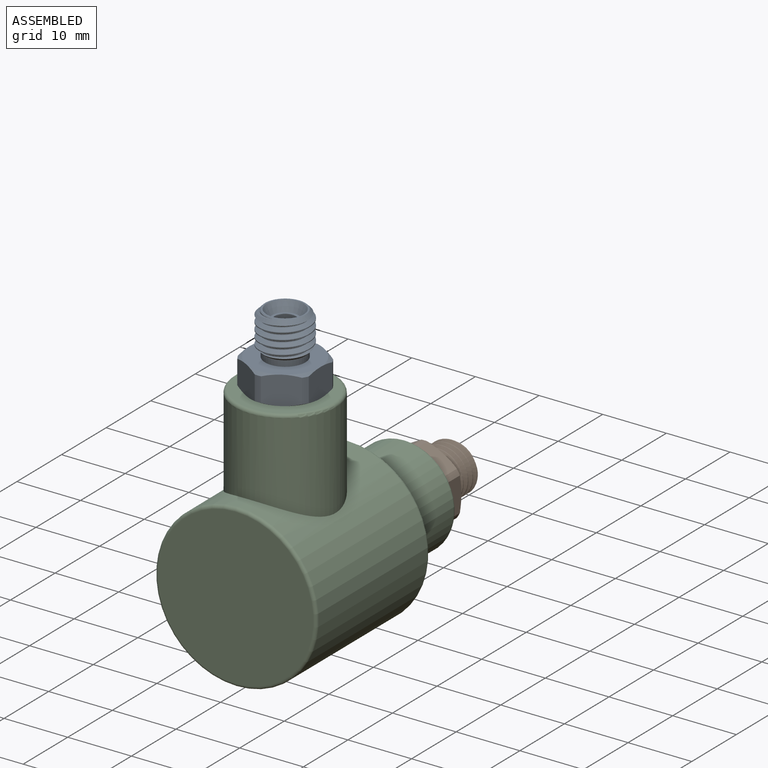
[diagram: assembled view]
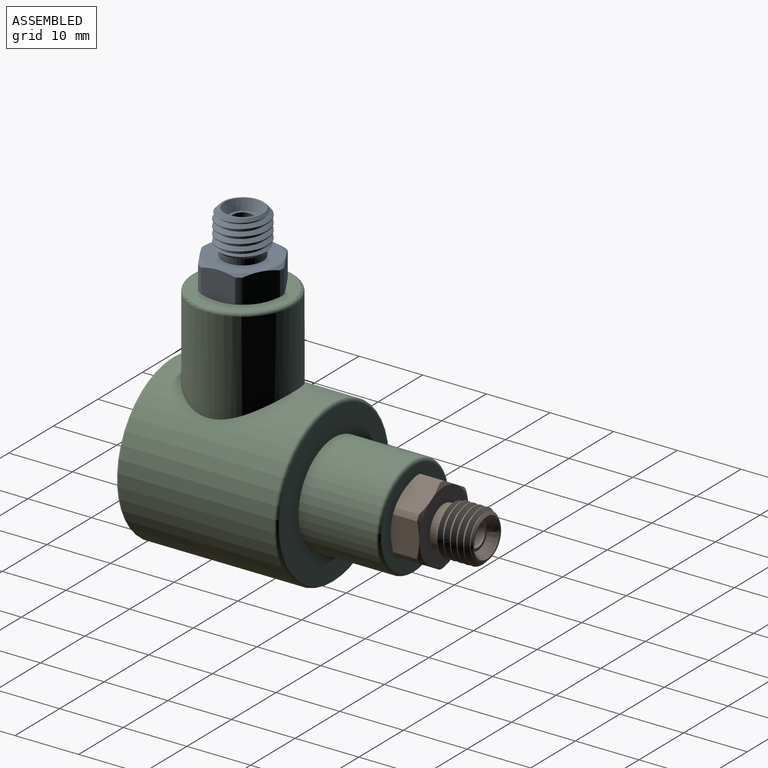
[diagram: assembled view, second angle]
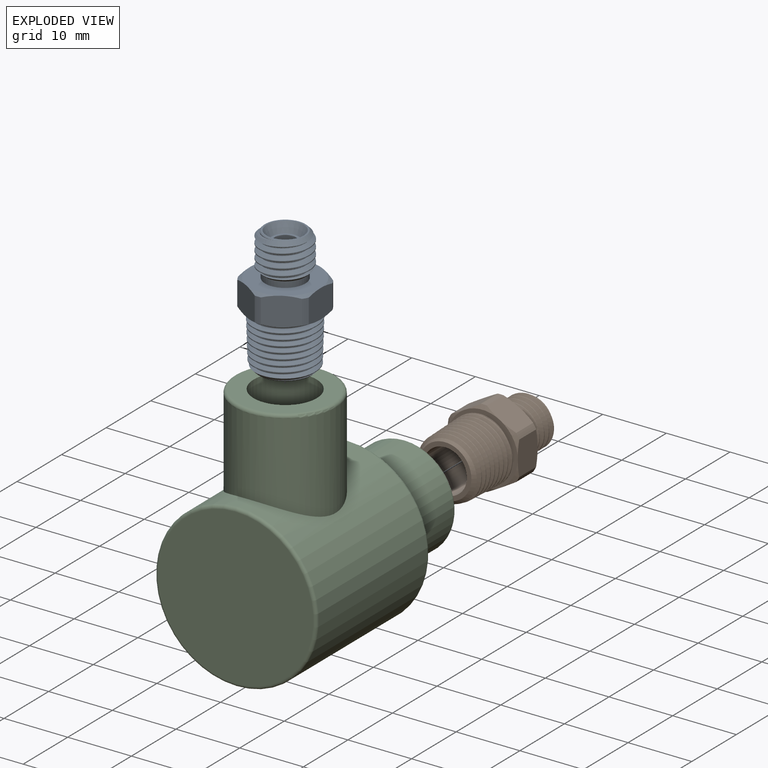
[diagram: exploded view]
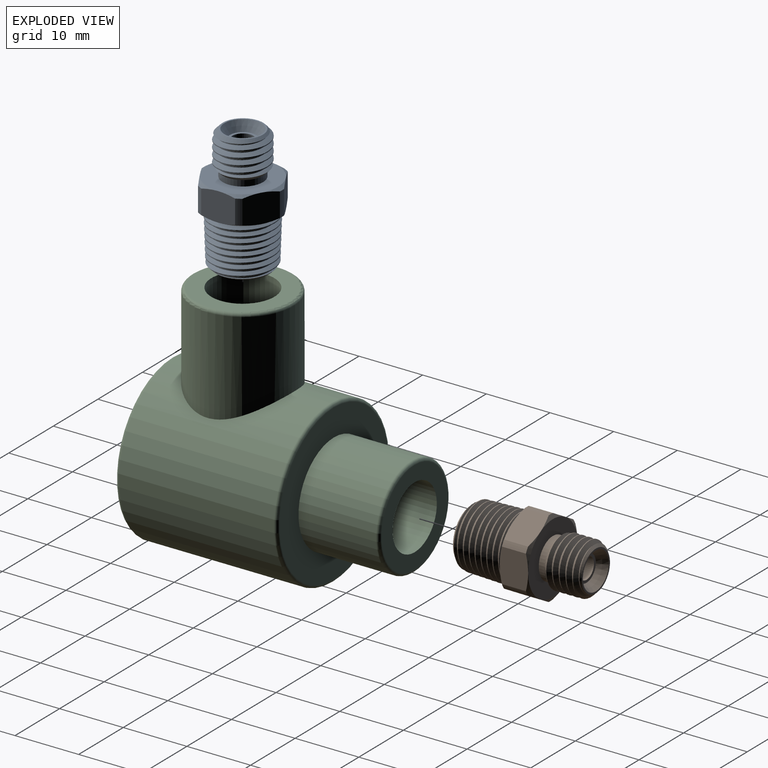
[diagram: exploded view, second angle]
ASSEMBLY  parts=3 mates=2
PART A: 48 faces, bbox 21.3x21.3x29.2 mm
  f0: cone r=4.12mm half-angle=45deg, axis (0,0,1), area 16.9mm2, adj f3,f44,f45,f46,f47
  f1: cone r=3.42mm half-angle=59deg, axis (0,0,-1), area 37.6mm2, adj f2,f10
  f2: cylinder r=3.42mm len=7mm, axis (0,0,1), area 150.2mm2, adj f1,f44
  f3: cone r=5.09mm half-angle=1.8deg, axis (0,0,1), area 33.4mm2, adj f0,f43,f46,f47
  f4: cone r=6.16mm half-angle=60deg, axis (0,0,1), area 2.4mm2, adj f5,f30,f31,f43
  f5: cylinder r=6.16mm len=3.78mm, axis (0,0,1), area 3.6mm2, adj f4,f24,f30,f31
  f6: cone r=5.56mm half-angle=60deg, axis (0,0,-1), area 2.4mm2, adj f21,f27,f28,f33
  f7: cylinder r=3.17mm len=6.33mm, axis (0,0,1), area 18.2mm2, adj f8,f21
  f8: cone r=4.08mm half-angle=45deg, axis (0,0,1), area 14.1mm2, adj f7,f9,f18,f19,f20
  f9: cylinder r=3.97mm len=7.94mm, axis (0,0,1), area 8.1mm2, adj f8,f14,f18,f20
  f10: cylinder r=1.19mm len=5.13mm, axis (0,0,1), area 38.5mm2, adj f1,f17
  f11: cylinder r=1.65mm len=4.64mm, axis (0,0,1), area 48.2mm2, adj f16,f17
  f12: cone r=2.07mm half-angle=30deg, axis (0,0,1), area 26.3mm2, adj f15,f16
  f13: cone r=3.17mm half-angle=45deg, axis (0,0,-1), area 12mm2, adj f14,f15,f18,f19,f20
  f14: cone r=3.17mm half-angle=45deg, axis (0,0,-1), area 2.6mm2, adj f9,f13,f18,f20
  f15: plane 6.33x6.33mm, normal (0,0,1), area 4.9mm2, adj f12,f13
  f16: plane 4.14x4.14mm, normal (0,0,1), area 4.9mm2, adj f11,f12
  f17: plane 3.3x3.3mm, normal (0,0,1), area 4.1mm2, adj f10,f11
  f18: bspline ~8.05x8.05mm, area 86.1mm2, adj f8,f9,f13,f14,f19
  f19: cylinder r=3.28mm len=6.56mm, axis (0,0,1), area 14.5mm2, adj f8,f13,f18,f20
  f20: bspline ~8.05x8.05mm, area 83.6mm2, adj f8,f9,f13,f14,f19
  f21: plane 11.11x11.11mm, normal (0,0,1), area 65.5mm2, adj f6,f7,f22,f23,f24,f25,f26
  f22: cone r=5.56mm half-angle=60deg, axis (0,0,-1), area 2.4mm2, adj f21,f32,f33,f34
  f23: cone r=5.56mm half-angle=60deg, axis (0,0,-1), area 2.4mm2, adj f21,f31,f32,f36
  f24: cone r=5.56mm half-angle=60deg, axis (0,0,-1), area 2.4mm2, adj f5,f21,f30,f31
  f25: cone r=5.56mm half-angle=60deg, axis (0,0,-1), area 2.4mm2, adj f21,f29,f30,f38
  f26: cone r=5.56mm half-angle=60deg, axis (0,0,-1), area 2.4mm2, adj f21,f28,f29,f40
  f27: cylinder r=6.16mm len=3.78mm, axis (0,0,1), area 3.6mm2, adj f6,f28,f33,f42
  f28: plane 4.98x4.84mm, normal (0.5,0.87,0), area 22.6mm2, adj f6,f26,f27,f40,f41,f42
  f29: plane 5.69x4.84mm, normal (1,0,0), area 22.6mm2, adj f25,f26,f38,f39,f40,f41
  f30: plane 4.98x4.84mm, normal (0.5,-0.87,0), area 22.6mm2, adj f4,f5,f24,f25,f38,f39
  f31: plane 4.98x4.84mm, normal (-0.5,-0.87,0), area 22.6mm2, adj f4,f5,f23,f24,f36,f37
  f32: plane 5.69x4.84mm, normal (-1,0,0), area 22.6mm2, adj f22,f23,f34,f35,f36,f37
  f33: plane 4.98x4.84mm, normal (-0.5,0.87,0), area 22.6mm2, adj f6,f22,f27,f34,f35,f42
  f34: cylinder r=6.16mm len=3.78mm, axis (0,0,1), area 3.6mm2, adj f22,f32,f33,f35
  f35: cone r=6.16mm half-angle=60deg, axis (0,0,1), area 2.4mm2, adj f32,f33,f34,f43
  f36: cylinder r=6.16mm len=3.78mm, axis (0,0,1), area 3.6mm2, adj f23,f31,f32,f37
  f37: cone r=6.16mm half-angle=60deg, axis (0,0,1), area 2.4mm2, adj f31,f32,f36,f43
  f38: cylinder r=6.16mm len=3.78mm, axis (0,0,1), area 3.6mm2, adj f25,f29,f30,f39
  f39: cone r=6.16mm half-angle=60deg, axis (0,0,1), area 2.4mm2, adj f29,f30,f38,f43
  f40: cylinder r=6.16mm len=3.78mm, axis (0,0,1), area 3.6mm2, adj f26,f28,f29,f41
  f41: cone r=6.16mm half-angle=60deg, axis (0,0,1), area 2.4mm2, adj f28,f29,f40,f43
  f42: cone r=6.16mm half-angle=60deg, axis (0,0,1), area 2.4mm2, adj f27,f28,f33,f43
  f43: plane 20.05x20.05mm, normal (0,0,-1), area 24.5mm2, adj f3,f4,f35,f37,f39,f41,f42,f45
  f44: plane 8.24x8.24mm, normal (0,0,-1), area 16.7mm2, adj f0,f2
  f45: bspline ~8.83x8.8mm, area 28.2mm2, adj f0,f43,f46,f47
  f46: bspline ~10.35x10.31mm, area 115.3mm2, adj f0,f3,f43,f45
  f47: bspline ~10.36x10.35mm, area 174mm2, adj f0,f3,f43,f45
PART B: same geometry as A
PART C: 15 faces, bbox 27.5x38.1x39.1 mm
  f0: cylinder r=12.7mm len=25.4mm, axis (0,1,0), area 1736.6mm2, adj f6,f7,f8
  f1: plane 24.38x24.38mm, normal (0,-1,0), area 467mm2, adj f7
  f2: plane 24.38x24.38mm, normal (0,1,0), area 269mm2, adj f3,f6
  f3: cylinder r=7.94mm len=15.88mm, axis (0,-1,0), area 608mm2, adj f2,f5
  f4: plane 14.86x14.86mm, normal (0,1,0), area 96.1mm2, adj f5,f14
  f5: torus R=7.43mm, axis (0,1,0), area 38.9mm2, adj f3,f4
  f6: torus R=12.19mm, axis (0,-1,0), area 62.7mm2, adj f0,f2
  f7: torus R=12.19mm, axis (0,-1,0), area 62.7mm2, adj f0,f1
  f8: cylinder r=7.94mm len=15.88mm, axis (0,0,-1), area 675.3mm2, adj f0,f10
  f9: plane 14.86x14.86mm, normal (0,0,1), area 96.1mm2, adj f10,f12
  f10: torus R=7.43mm, axis (0,0,1), area 38.9mm2, adj f8,f9
  f11: cone r=0mm half-angle=59deg, axis (0,0,1), area 90.2mm2, adj f12
  f12: cylinder r=4.96mm len=11mm, axis (0,0,1), area 342.9mm2, adj f9,f11
  f13: cone r=0mm half-angle=59deg, axis (0,1,0), area 90.2mm2, adj f14
  f14: cylinder r=4.96mm len=11mm, axis (0,1,0), area 342.9mm2, adj f4,f13
PLACE A t=(-19.67,-15.98,28.64)mm
PLACE B rot(axis=(0,0.71,0.71),180deg) t=(-19.67,15.63,-1.38)mm
PLACE C t=(-19.67,-1.69,-1.38)mm
MATE fastened B.f0 <-> C.f3  axis (0,1,0) through (-19.67,2.8,-1.38)mm
MATE fastened A.f0 <-> C.f8  axis (0,0,1) through (-19.67,-15.98,15.81)mm
